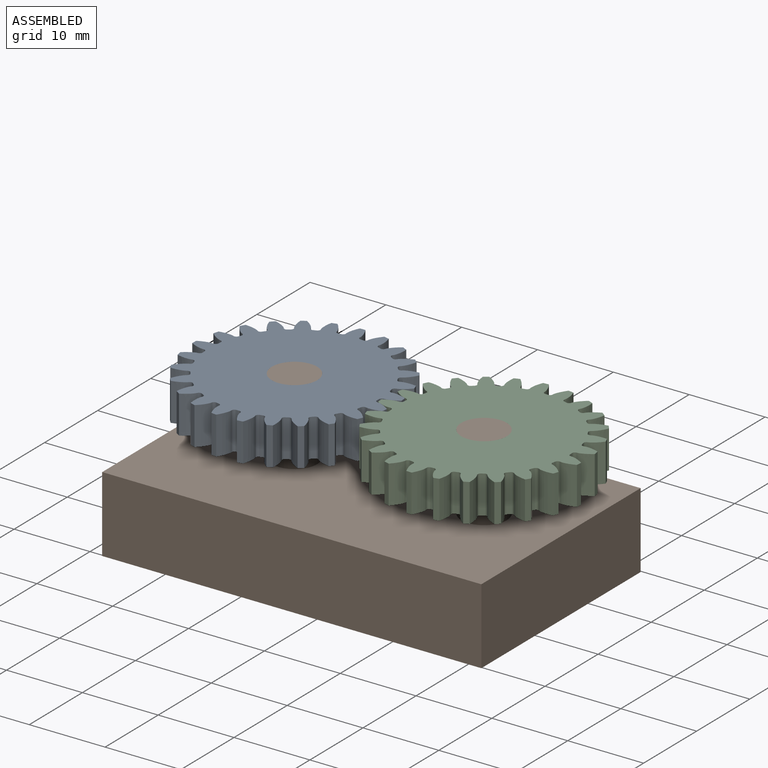
[diagram: assembled view]
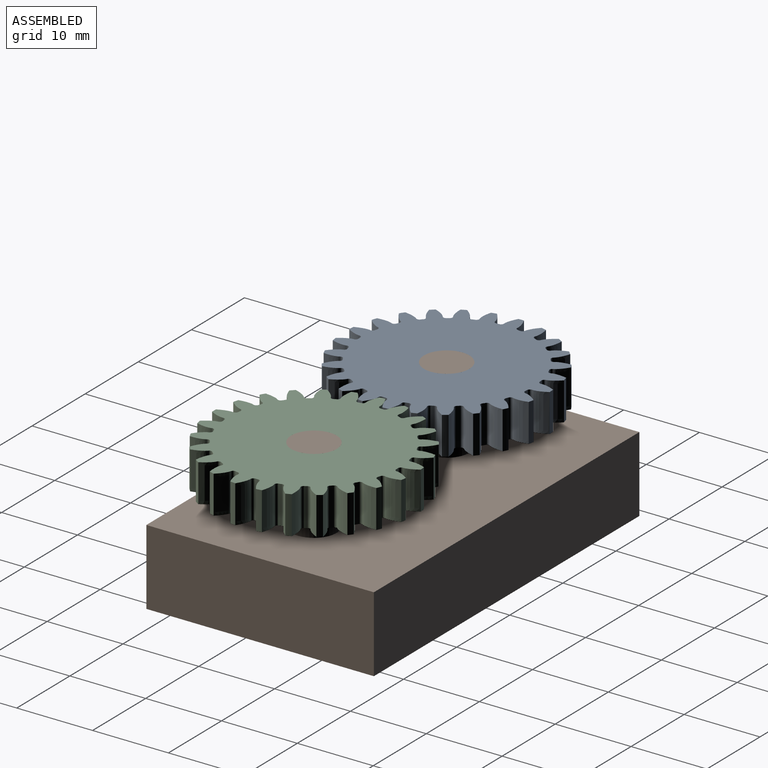
[diagram: assembled view, second angle]
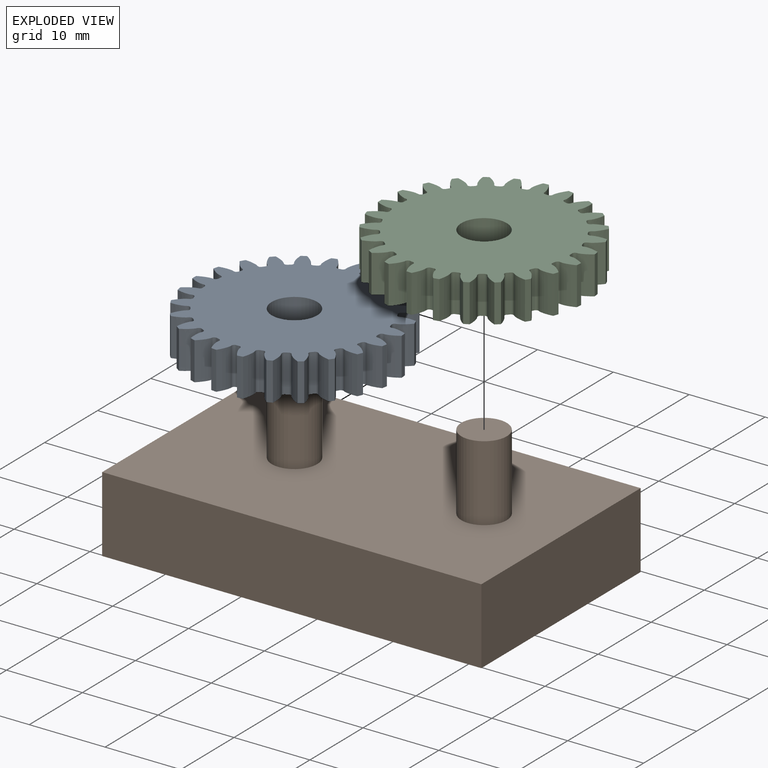
[diagram: exploded view]
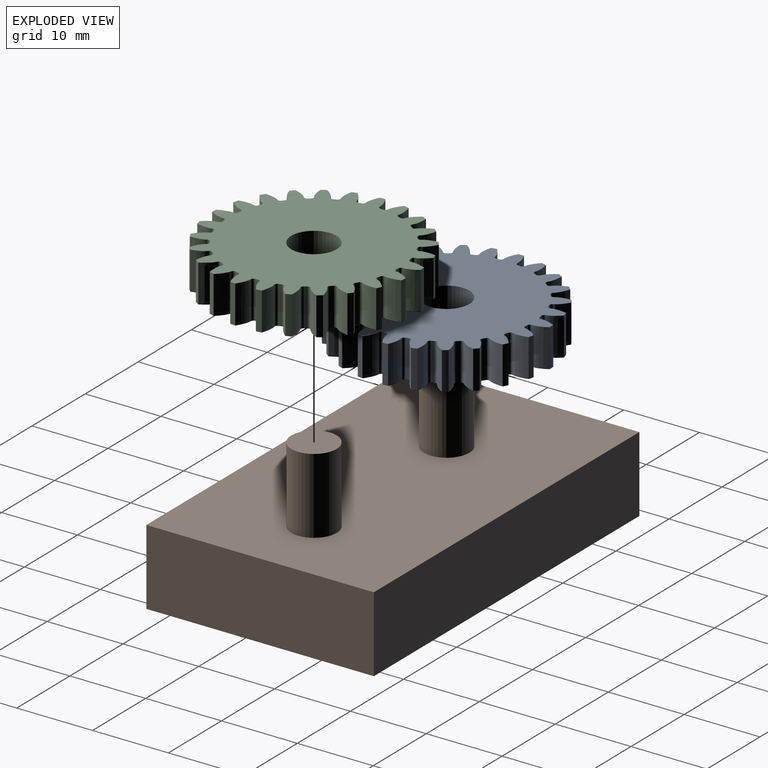
[diagram: exploded view, second angle]
ASSEMBLY  parts=3 mates=2
PART A: 153 faces, bbox 26.9x5x27 mm
  f0: extruded ~5x1.84mm, area 10.1mm2, adj f100,f101,f102,f103
  f1: cylinder r=11.25mm len=5mm, axis (0,1,0), area 1.9mm2, adj f101,f102,f103,f104
  f2: extruded ~5x1.84mm, area 10.1mm2, adj f3,f101,f102,f104
  f3: cylinder r=13.5mm len=5mm, axis (0,1,0), area 3.6mm2, adj f2,f4,f101,f102
  f4: extruded ~5x1.98mm, area 10.1mm2, adj f3,f101,f102,f105
  f5: cylinder r=11.25mm len=5mm, axis (0,1,0), area 1.9mm2, adj f101,f102,f105,f106
  f6: extruded ~5x1.59mm, area 10.1mm2, adj f7,f101,f102,f106
  f7: cylinder r=13.5mm len=5mm, axis (0,1,0), area 3.6mm2, adj f6,f8,f101,f102
  f8: extruded ~5x1.99mm, area 10.1mm2, adj f7,f101,f102,f107
  f9: cylinder r=11.25mm len=5mm, axis (0,1,0), area 1.9mm2, adj f101,f102,f107,f108
  f10: extruded ~5x1.57mm, area 10.1mm2, adj f11,f101,f102,f108
  f11: cylinder r=13.5mm len=5mm, axis (0,1,0), area 3.6mm2, adj f10,f12,f101,f102
  f12: extruded ~5x1.88mm, area 10.1mm2, adj f11,f101,f102,f109
  f13: cylinder r=11.25mm len=5mm, axis (0,1,0), area 1.9mm2, adj f101,f102,f109,f110
  f14: extruded ~5x1.83mm, area 10.1mm2, adj f15,f101,f102,f110
  f15: cylinder r=13.5mm len=5mm, axis (0,1,0), area 3.6mm2, adj f14,f16,f101,f102
  f16: extruded ~5x1.65mm, area 10.1mm2, adj f15,f101,f102,f111
  f17: cylinder r=11.25mm len=5mm, axis (0,1,0), area 1.9mm2, adj f101,f102,f111,f112
  f18: extruded ~5x1.97mm, area 10.1mm2, adj f19,f101,f102,f112
  f19: cylinder r=13.5mm len=5mm, axis (0,1,0), area 3.6mm2, adj f18,f20,f101,f102
  f20: extruded ~5x1.51mm, area 10.1mm2, adj f19,f101,f102,f113
  f21: cylinder r=11.25mm len=5mm, axis (0,1,0), area 1.9mm2, adj f101,f102,f113,f114
  f22: extruded ~5x1.99mm, area 10.1mm2, adj f23,f101,f102,f114
  f23: cylinder r=13.5mm len=5mm, axis (0,1,0), area 3.6mm2, adj f22,f24,f101,f102
  f24: extruded ~5x1.79mm, area 10.1mm2, adj f23,f101,f102,f115
  f25: cylinder r=11.25mm len=5mm, axis (0,1,0), area 1.9mm2, adj f101,f102,f115,f116
  f26: extruded ~5x1.89mm, area 10.1mm2, adj f27,f101,f102,f116
  f27: cylinder r=13.5mm len=5mm, axis (0,1,0), area 3.6mm2, adj f26,f28,f101,f102
  f28: extruded ~5x1.96mm, area 10.1mm2, adj f27,f101,f102,f117
  f29: cylinder r=11.25mm len=5mm, axis (0,1,0), area 1.9mm2, adj f101,f102,f117,f118
  f30: extruded ~5x1.67mm, area 10.1mm2, adj f31,f101,f102,f118
  f31: cylinder r=13.5mm len=5mm, axis (0,1,0), area 3.6mm2, adj f30,f32,f101,f102
  f32: extruded ~5x2mm, area 10.1mm2, adj f31,f101,f102,f119
  f33: cylinder r=11.25mm len=5mm, axis (0,1,0), area 1.9mm2, adj f101,f102,f119,f120
  f34: extruded ~5x1.49mm, area 10.1mm2, adj f35,f101,f102,f120
  f35: cylinder r=13.5mm len=5mm, axis (0,1,0), area 3.6mm2, adj f34,f36,f101,f102
  f36: extruded ~5x1.92mm, area 10.1mm2, adj f35,f101,f102,f121
  f37: cylinder r=11.25mm len=5mm, axis (0,1,0), area 1.9mm2, adj f101,f102,f121,f122
  f38: extruded ~5x1.78mm, area 10.1mm2, adj f39,f101,f102,f122
  f39: cylinder r=13.5mm len=5mm, axis (0,1,0), area 3.6mm2, adj f38,f40,f101,f102
  f40: extruded ~5x1.72mm, area 10.1mm2, adj f39,f101,f102,f123
  f41: cylinder r=11.25mm len=5mm, axis (0,1,0), area 1.9mm2, adj f101,f102,f123,f124
  f42: extruded ~5x1.95mm, area 10.1mm2, adj f43,f101,f102,f124
  f43: cylinder r=13.5mm len=5mm, axis (0,1,0), area 3.6mm2, adj f42,f44,f101,f102
  f44: extruded ~5x1.43mm, area 10.1mm2, adj f43,f101,f102,f125
  f45: cylinder r=11.25mm len=5mm, axis (0,1,0), area 1.9mm2, adj f101,f102,f125,f126
  f46: extruded ~5x2mm, area 10.1mm2, adj f47,f101,f102,f126
  f47: cylinder r=13.5mm len=5mm, axis (0,1,0), area 3.6mm2, adj f46,f48,f101,f102
  f48: extruded ~5x1.73mm, area 10.1mm2, adj f47,f101,f102,f127
  f49: cylinder r=11.25mm len=5mm, axis (0,1,0), area 1.9mm2, adj f101,f102,f127,f128
  f50: extruded ~5x1.93mm, area 10.1mm2, adj f51,f101,f102,f128
  f51: cylinder r=13.5mm len=5mm, axis (0,1,0), area 3.6mm2, adj f50,f52,f101,f102
  f52: extruded ~5x1.93mm, area 10.1mm2, adj f51,f101,f102,f129
  f53: cylinder r=11.25mm len=5mm, axis (0,1,0), area 1.9mm2, adj f101,f102,f129,f130
  f54: extruded ~5x1.73mm, area 10.1mm2, adj f55,f101,f102,f130
  f55: cylinder r=13.5mm len=5mm, axis (0,1,0), area 3.6mm2, adj f54,f56,f101,f102
  f56: extruded ~5x2mm, area 10.1mm2, adj f55,f101,f102,f131
  f57: cylinder r=11.25mm len=5mm, axis (0,1,0), area 1.9mm2, adj f101,f102,f131,f132
  f58: extruded ~5x1.43mm, area 10.1mm2, adj f59,f101,f102,f132
  f59: cylinder r=13.5mm len=5mm, axis (0,1,0), area 3.6mm2, adj f58,f60,f101,f102
  f60: extruded ~5x1.95mm, area 10.1mm2, adj f59,f101,f102,f133
  f61: cylinder r=11.25mm len=5mm, axis (0,1,0), area 1.9mm2, adj f101,f102,f133,f134
  f62: extruded ~5x1.72mm, area 10.1mm2, adj f63,f101,f102,f134
  f63: cylinder r=13.5mm len=5mm, axis (0,1,0), area 3.6mm2, adj f62,f64,f101,f102
  f64: extruded ~5x1.78mm, area 10.1mm2, adj f63,f101,f102,f135
  f65: cylinder r=11.25mm len=5mm, axis (0,1,0), area 1.9mm2, adj f101,f102,f135,f136
  f66: extruded ~5x1.92mm, area 10.1mm2, adj f67,f101,f102,f136
  f67: cylinder r=13.5mm len=5mm, axis (0,1,0), area 3.6mm2, adj f66,f68,f101,f102
  f68: extruded ~5x1.49mm, area 10.1mm2, adj f67,f101,f102,f137
  f69: cylinder r=11.25mm len=5mm, axis (0,1,0), area 1.9mm2, adj f101,f102,f137,f138
  f70: extruded ~5x2mm, area 10.1mm2, adj f71,f101,f102,f138
  f71: cylinder r=13.5mm len=5mm, axis (0,1,0), area 3.6mm2, adj f70,f72,f101,f102
  f72: extruded ~5x1.67mm, area 10.1mm2, adj f71,f101,f102,f139
  f73: cylinder r=11.25mm len=5mm, axis (0,1,0), area 1.9mm2, adj f101,f102,f139,f140
  f74: extruded ~5x1.96mm, area 10.1mm2, adj f75,f101,f102,f140
  f75: cylinder r=13.5mm len=5mm, axis (0,1,0), area 3.6mm2, adj f74,f76,f101,f102
  f76: extruded ~5x1.89mm, area 10.1mm2, adj f75,f101,f102,f141
  f77: cylinder r=11.25mm len=5mm, axis (0,1,0), area 1.9mm2, adj f101,f102,f141,f142
  f78: extruded ~5x1.79mm, area 10.1mm2, adj f79,f101,f102,f142
  f79: cylinder r=13.5mm len=5mm, axis (0,1,0), area 3.6mm2, adj f78,f80,f101,f102
  f80: extruded ~5x1.99mm, area 10.1mm2, adj f79,f101,f102,f143
  f81: cylinder r=11.25mm len=5mm, axis (0,1,0), area 1.9mm2, adj f101,f102,f143,f144
  f82: extruded ~5x1.51mm, area 10.1mm2, adj f83,f101,f102,f144
  f83: cylinder r=13.5mm len=5mm, axis (0,1,0), area 3.6mm2, adj f82,f84,f101,f102
  f84: extruded ~5x1.97mm, area 10.1mm2, adj f83,f101,f102,f145
  f85: cylinder r=11.25mm len=5mm, axis (0,1,0), area 1.9mm2, adj f101,f102,f145,f146
  f86: extruded ~5x1.65mm, area 10.1mm2, adj f87,f101,f102,f146
  f87: cylinder r=13.5mm len=5mm, axis (0,1,0), area 3.6mm2, adj f86,f88,f101,f102
  f88: extruded ~5x1.83mm, area 10.1mm2, adj f87,f101,f102,f147
  f89: cylinder r=11.25mm len=5mm, axis (0,1,0), area 1.9mm2, adj f101,f102,f147,f148
  f90: extruded ~5x1.88mm, area 10.1mm2, adj f91,f101,f102,f148
  f91: cylinder r=13.5mm len=5mm, axis (0,1,0), area 3.6mm2, adj f90,f92,f101,f102
  f92: extruded ~5x1.57mm, area 10.1mm2, adj f91,f101,f102,f149
  f93: cylinder r=11.25mm len=5mm, axis (0,1,0), area 1.9mm2, adj f101,f102,f149,f150
  f94: extruded ~5x1.99mm, area 10.1mm2, adj f95,f101,f102,f150
  f95: cylinder r=13.5mm len=5mm, axis (0,1,0), area 3.6mm2, adj f94,f96,f101,f102
  f96: extruded ~5x1.59mm, area 10.1mm2, adj f95,f101,f102,f151
  f97: cylinder r=11.25mm len=5mm, axis (0,1,0), area 1.9mm2, adj f101,f102,f151,f152
  f98: extruded ~5x1.98mm, area 10.1mm2, adj f100,f101,f102,f152
  f99: cylinder r=3mm len=6mm, axis (0,1,0), area 94.2mm2, adj f101,f102
  f100: cylinder r=13.5mm len=5mm, axis (0,1,0), area 3.6mm2, adj f0,f98,f101,f102
  f101: plane 26.99x26.94mm, normal (0,-1,0), area 455.2mm2, adj f0,f1,f2,f3,f4,f5,f6,f7
  f102: plane 26.99x26.94mm, normal (0,1,0), area 455.2mm2, adj f0,f1,f2,f3,f4,f5,f6,f7
  f103: cylinder r=0.36mm len=5mm, axis (0,1,0), area 2.8mm2, adj f0,f1,f101,f102
  f104: cylinder r=0.36mm len=5mm, axis (0,1,0), area 2.8mm2, adj f1,f2,f101,f102
  f105: cylinder r=0.36mm len=5mm, axis (0,1,0), area 2.8mm2, adj f4,f5,f101,f102
  f106: cylinder r=0.36mm len=5mm, axis (0,1,0), area 2.8mm2, adj f5,f6,f101,f102
  f107: cylinder r=0.36mm len=5mm, axis (0,1,0), area 2.8mm2, adj f8,f9,f101,f102
  f108: cylinder r=0.36mm len=5mm, axis (0,1,0), area 2.8mm2, adj f9,f10,f101,f102
  f109: cylinder r=0.36mm len=5mm, axis (0,1,0), area 2.8mm2, adj f12,f13,f101,f102
  f110: cylinder r=0.36mm len=5mm, axis (0,1,0), area 2.8mm2, adj f13,f14,f101,f102
  f111: cylinder r=0.36mm len=5mm, axis (0,1,0), area 2.8mm2, adj f16,f17,f101,f102
  f112: cylinder r=0.36mm len=5mm, axis (0,1,0), area 2.8mm2, adj f17,f18,f101,f102
  f113: cylinder r=0.36mm len=5mm, axis (0,1,0), area 2.8mm2, adj f20,f21,f101,f102
  f114: cylinder r=0.36mm len=5mm, axis (0,1,0), area 2.8mm2, adj f21,f22,f101,f102
  f115: cylinder r=0.36mm len=5mm, axis (0,1,0), area 2.8mm2, adj f24,f25,f101,f102
  f116: cylinder r=0.36mm len=5mm, axis (0,1,0), area 2.8mm2, adj f25,f26,f101,f102
  f117: cylinder r=0.36mm len=5mm, axis (0,1,0), area 2.8mm2, adj f28,f29,f101,f102
  f118: cylinder r=0.36mm len=5mm, axis (0,1,0), area 2.8mm2, adj f29,f30,f101,f102
  f119: cylinder r=0.36mm len=5mm, axis (0,1,0), area 2.8mm2, adj f32,f33,f101,f102
  f120: cylinder r=0.36mm len=5mm, axis (0,1,0), area 2.8mm2, adj f33,f34,f101,f102
  f121: cylinder r=0.36mm len=5mm, axis (0,1,0), area 2.8mm2, adj f36,f37,f101,f102
  f122: cylinder r=0.36mm len=5mm, axis (0,1,0), area 2.8mm2, adj f37,f38,f101,f102
  f123: cylinder r=0.36mm len=5mm, axis (0,1,0), area 2.8mm2, adj f40,f41,f101,f102
  f124: cylinder r=0.36mm len=5mm, axis (0,1,0), area 2.8mm2, adj f41,f42,f101,f102
  f125: cylinder r=0.36mm len=5mm, axis (0,1,0), area 2.8mm2, adj f44,f45,f101,f102
  f126: cylinder r=0.36mm len=5mm, axis (0,1,0), area 2.8mm2, adj f45,f46,f101,f102
  f127: cylinder r=0.36mm len=5mm, axis (0,1,0), area 2.8mm2, adj f48,f49,f101,f102
  f128: cylinder r=0.36mm len=5mm, axis (0,1,0), area 2.8mm2, adj f49,f50,f101,f102
  f129: cylinder r=0.36mm len=5mm, axis (0,1,0), area 2.8mm2, adj f52,f53,f101,f102
  f130: cylinder r=0.36mm len=5mm, axis (0,1,0), area 2.8mm2, adj f53,f54,f101,f102
  f131: cylinder r=0.36mm len=5mm, axis (0,1,0), area 2.8mm2, adj f56,f57,f101,f102
  f132: cylinder r=0.36mm len=5mm, axis (0,1,0), area 2.8mm2, adj f57,f58,f101,f102
  f133: cylinder r=0.36mm len=5mm, axis (0,1,0), area 2.8mm2, adj f60,f61,f101,f102
  f134: cylinder r=0.36mm len=5mm, axis (0,1,0), area 2.8mm2, adj f61,f62,f101,f102
  f135: cylinder r=0.36mm len=5mm, axis (0,1,0), area 2.8mm2, adj f64,f65,f101,f102
  f136: cylinder r=0.36mm len=5mm, axis (0,1,0), area 2.8mm2, adj f65,f66,f101,f102
  f137: cylinder r=0.36mm len=5mm, axis (0,1,0), area 2.8mm2, adj f68,f69,f101,f102
  f138: cylinder r=0.36mm len=5mm, axis (0,1,0), area 2.8mm2, adj f69,f70,f101,f102
  f139: cylinder r=0.36mm len=5mm, axis (0,1,0), area 2.8mm2, adj f72,f73,f101,f102
  f140: cylinder r=0.36mm len=5mm, axis (0,1,0), area 2.8mm2, adj f73,f74,f101,f102
  f141: cylinder r=0.36mm len=5mm, axis (0,1,0), area 2.8mm2, adj f76,f77,f101,f102
  f142: cylinder r=0.36mm len=5mm, axis (0,1,0), area 2.8mm2, adj f77,f78,f101,f102
  f143: cylinder r=0.36mm len=5mm, axis (0,1,0), area 2.8mm2, adj f80,f81,f101,f102
  f144: cylinder r=0.36mm len=5mm, axis (0,1,0), area 2.8mm2, adj f81,f82,f101,f102
  f145: cylinder r=0.36mm len=5mm, axis (0,1,0), area 2.8mm2, adj f84,f85,f101,f102
  f146: cylinder r=0.36mm len=5mm, axis (0,1,0), area 2.8mm2, adj f85,f86,f101,f102
  f147: cylinder r=0.36mm len=5mm, axis (0,1,0), area 2.8mm2, adj f88,f89,f101,f102
  f148: cylinder r=0.36mm len=5mm, axis (0,1,0), area 2.8mm2, adj f89,f90,f101,f102
  f149: cylinder r=0.36mm len=5mm, axis (0,1,0), area 2.8mm2, adj f92,f93,f101,f102
  f150: cylinder r=0.36mm len=5mm, axis (0,1,0), area 2.8mm2, adj f93,f94,f101,f102
  f151: cylinder r=0.36mm len=5mm, axis (0,1,0), area 2.8mm2, adj f96,f97,f101,f102
  f152: cylinder r=0.36mm len=5mm, axis (0,1,0), area 2.8mm2, adj f97,f98,f101,f102
PART B: 10 faces, bbox 50x30x20 mm
  f0: plane 30x10mm, normal (-1,0,0), area 300mm2, adj f1,f3,f4,f5
  f1: plane 50x10mm, normal (0,-1,0), area 500mm2, adj f0,f2,f4,f5
  f2: plane 30x10mm, normal (1,0,0), area 300mm2, adj f1,f3,f4,f5
  f3: plane 50x10mm, normal (0,1,0), area 500mm2, adj f0,f2,f4,f5
  f4: plane 50x30mm, normal (0,0,1), area 1443.5mm2, adj f0,f1,f2,f3,f6,f8
  f5: plane 50x30mm, normal (0,0,-1), area 1500mm2, adj f0,f1,f2,f3
  f6: cylinder r=3mm len=10mm, axis (0,0,-1), area 188.5mm2, adj f4,f7
  f7: plane 6x6mm, normal (0,0,1), area 28.3mm2, adj f6
  f8: cylinder r=3mm len=10mm, axis (0,0,-1), area 188.5mm2, adj f4,f9
  f9: plane 6x6mm, normal (0,0,1), area 28.3mm2, adj f8
PART C: same geometry as A
PLACE A rot(axis=(-0.61,-0.56,0.56),117deg) t=(17.78,33.13,35.94)mm
PLACE B t=(2.92,18.13,20.94)mm fixed
PLACE C rot(axis=(-0.61,0.56,-0.56),117deg) t=(42.78,33.13,35.94)mm
MATE revolute C.f3 <-> B.f8  axis (0,0,-1) through (42.78,33.13,40.94)mm
MATE revolute A.f3 <-> B.f6  axis (0,0,1) through (17.78,33.13,40.94)mm
